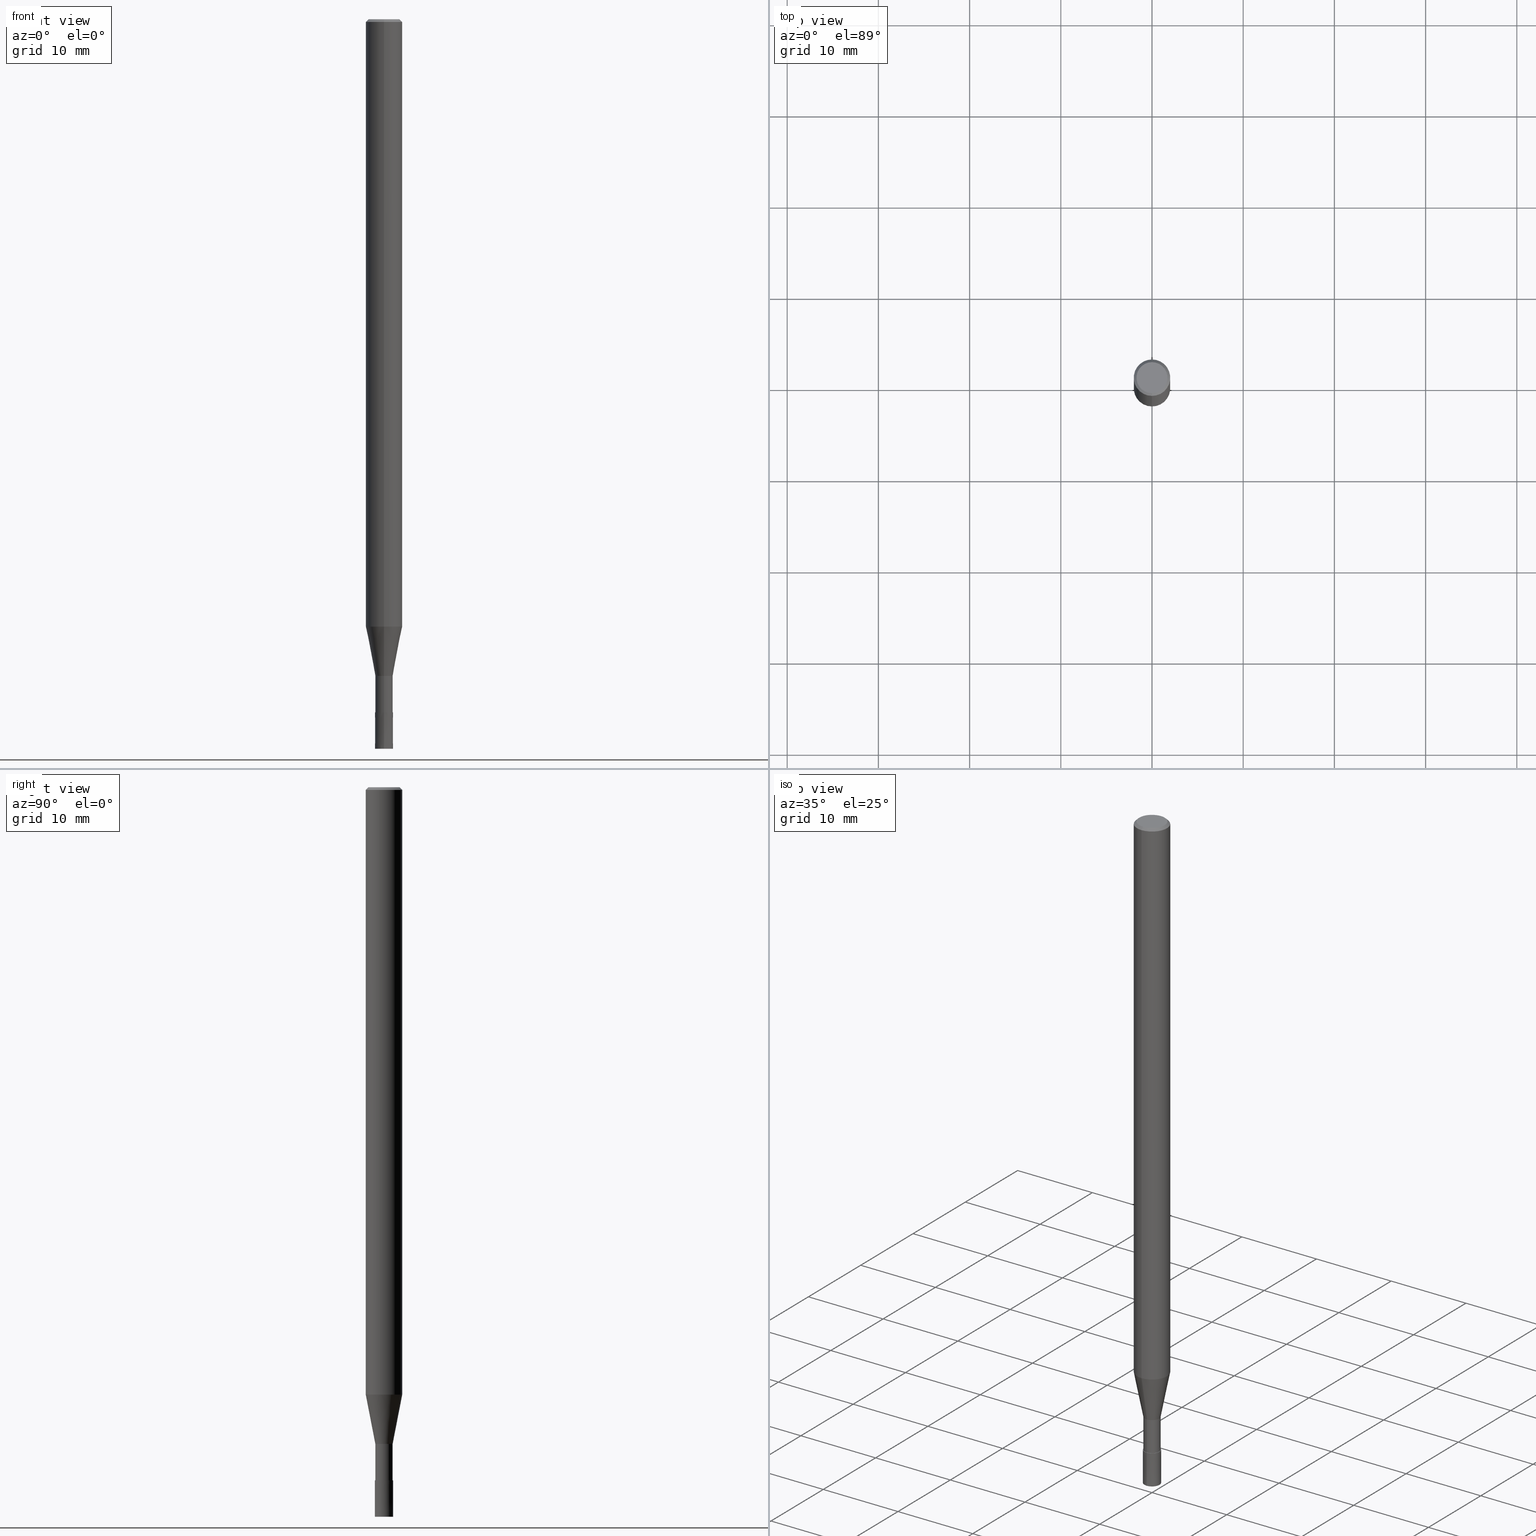
[diagram: canonical four-view strip — front | top / right | iso, engineering-drawing reading convention]
A machine part, canonical four-view strip (front | top / right | iso — engineering-drawing reading convention). The complete STEP part file that produces these views, byte-faithful:
ISO-10303-21;
HEADER;
FILE_DESCRIPTION(('no description'),'unknown implementation level');
FILE_NAME('CPRL2020-8-Huellk.stp','  ',('CIMSOURCE GmbH'),('CADClick - KiM GmbH - www.kimweb.de'),'unknown preprocess','ACIS','unknown authorization');
FILE_SCHEMA(('automotive_design'));
ENDSEC;
DATA;
#1=MECHANICAL_DESIGN_GEOMETRIC_PRESENTATION_REPRESENTATION(' ',(#14,#15,#16,#17,#18,#19,#20,#21,#22,#23,#24,#25,#26,#27,#28,#29,#30,#31,#32,#33,#34,#35,#36,#37,#38,#39,#40,#41,#42,#43,#44,#45,#46,#47,#48,#49,#50,#51,#52,#53,#54,#55,#56,#57,#58,#59,#60,#61,#62,#63,#64,#65,#66,#67,#68,#69,#70,#71,#72),#10);
#2=PRODUCT_DEFINITION_CONTEXT('',#73,'design');
#3=APPLICATION_PROTOCOL_DEFINITION('INTERNATIONAL STANDARD','automotive_design',1994,#73);
#4=PRODUCT_CATEGORY_RELATIONSHIP('NONE','NONE',#74,#75);
#5=SHAPE_DEFINITION_REPRESENTATION(#76,#77);
#6=PRODUCT_DEFINITION_CONTEXT('',#78,'design');
#7=APPLICATION_PROTOCOL_DEFINITION('INTERNATIONAL STANDARD','automotive_design',1994,#78);
#8=PRODUCT_CATEGORY_RELATIONSHIP('NONE','NONE',#79,#80);
#9=SHAPE_DEFINITION_REPRESENTATION(#81,#82);
#10= (GEOMETRIC_REPRESENTATION_CONTEXT(3)GLOBAL_UNCERTAINTY_ASSIGNED_CONTEXT((#85))GLOBAL_UNIT_ASSIGNED_CONTEXT((#87,#88,#89))REPRESENTATION_CONTEXT('NONE','WORKSPACE'));
#14=STYLED_ITEM('',(#91),#92);
#15=STYLED_ITEM('',(#93),#94);
#16=STYLED_ITEM('',(#95),#96);
#17=STYLED_ITEM('',(#97),#98);
#18=STYLED_ITEM('',(#99),#100);
#19=STYLED_ITEM('',(#101),#102);
#20=STYLED_ITEM('',(#103),#104);
#21=STYLED_ITEM('',(#105),#106);
#22=STYLED_ITEM('',(#107),#108);
#23=STYLED_ITEM('',(#109),#110);
#24=STYLED_ITEM('',(#111),#112);
#25=STYLED_ITEM('',(#113),#114);
#26=STYLED_ITEM('',(#115),#116);
#27=STYLED_ITEM('',(#117),#118);
#28=STYLED_ITEM('',(#119),#120);
#29=STYLED_ITEM('',(#121),#122);
#30=STYLED_ITEM('',(#123),#124);
#31=STYLED_ITEM('',(#125),#126);
#32=STYLED_ITEM('',(#127),#128);
#33=STYLED_ITEM('',(#129),#130);
#34=STYLED_ITEM('',(#131),#132);
#35=STYLED_ITEM('',(#133),#134);
#36=STYLED_ITEM('',(#135),#136);
#37=STYLED_ITEM('',(#137),#138);
#38=STYLED_ITEM('',(#139),#140);
#39=STYLED_ITEM('',(#141),#142);
#40=STYLED_ITEM('',(#143),#144);
#41=STYLED_ITEM('',(#145),#146);
#42=STYLED_ITEM('',(#147),#148);
#43=STYLED_ITEM('',(#149),#150);
#44=STYLED_ITEM('',(#151),#152);
#45=STYLED_ITEM('',(#153),#154);
#46=STYLED_ITEM('',(#155),#156);
#47=STYLED_ITEM('',(#157),#158);
#48=STYLED_ITEM('',(#159),#160);
#49=STYLED_ITEM('',(#161),#162);
#50=STYLED_ITEM('',(#163),#164);
#51=STYLED_ITEM('',(#165),#166);
#52=STYLED_ITEM('',(#167),#168);
#53=STYLED_ITEM('',(#169),#170);
#54=STYLED_ITEM('',(#171),#172);
#55=STYLED_ITEM('',(#173),#174);
#56=STYLED_ITEM('',(#175),#176);
#57=STYLED_ITEM('',(#177),#178);
#58=STYLED_ITEM('',(#179),#180);
#59=STYLED_ITEM('',(#181),#182);
#60=STYLED_ITEM('',(#183),#184);
#61=STYLED_ITEM('',(#185),#186);
#62=STYLED_ITEM('',(#187),#188);
#63=STYLED_ITEM('',(#189),#190);
#64=STYLED_ITEM('',(#191),#192);
#65=STYLED_ITEM('',(#193),#194);
#66=STYLED_ITEM('',(#195),#196);
#67=STYLED_ITEM('',(#197),#198);
#68=STYLED_ITEM('',(#199),#200);
#69=STYLED_ITEM('',(#201),#202);
#70=STYLED_ITEM('',(#203),#204);
#71=STYLED_ITEM('',(#205),#206);
#72=STYLED_ITEM('',(#207),#208);
#73=APPLICATION_CONTEXT(' ');
#74=PRODUCT_CATEGORY('part','NONE');
#75=PRODUCT_RELATED_PRODUCT_CATEGORY('detail',' ',(#209));
#76=PRODUCT_DEFINITION_SHAPE('NONE','NONE',#210);
#77=ADVANCED_BREP_SHAPE_REPRESENTATION('1',(#162,#211),#10);
#78=APPLICATION_CONTEXT(' ');
#79=PRODUCT_CATEGORY('part','NONE');
#80=PRODUCT_RELATED_PRODUCT_CATEGORY('detail',' ',(#212));
#81=PRODUCT_DEFINITION_SHAPE('NONE','NONE',#213);
#82=ADVANCED_BREP_SHAPE_REPRESENTATION('2',(#106,#214),#10);
#85=UNCERTAINTY_MEASURE_WITH_UNIT(LENGTH_MEASURE(1.0E-006),#87,'','');
#87= (CONVERSION_BASED_UNIT('MILLIMETRE',#217)LENGTH_UNIT()NAMED_UNIT(#220));
#88= (NAMED_UNIT(#222)PLANE_ANGLE_UNIT()SI_UNIT($,.RADIAN.));
#89= (NAMED_UNIT(#222)SOLID_ANGLE_UNIT()SI_UNIT($,.STERADIAN.));
#91=PRESENTATION_STYLE_ASSIGNMENT((#228));
#92=EDGE_CURVE('',#168,#136,#229,.T.);
#93=PRESENTATION_STYLE_ASSIGNMENT((#230));
#94=EDGE_CURVE('',#176,#174,#231,.T.);
#95=PRESENTATION_STYLE_ASSIGNMENT((#232));
#96=ADVANCED_FACE('',(#233),#234,.T.);
#97=PRESENTATION_STYLE_ASSIGNMENT((#235));
#98=EDGE_CURVE('',#184,#186,#236,.T.);
#99=PRESENTATION_STYLE_ASSIGNMENT((#237));
#100=VERTEX_POINT('',#238);
#101=PRESENTATION_STYLE_ASSIGNMENT((#239));
#102=EDGE_CURVE('',#114,#148,#240,.T.);
#103=PRESENTATION_STYLE_ASSIGNMENT((#241));
#104=ADVANCED_FACE('',(#242),#243,.T.);
#105=PRESENTATION_STYLE_ASSIGNMENT((#244));
#106=MANIFOLD_SOLID_BREP('2',#245);
#107=PRESENTATION_STYLE_ASSIGNMENT((#246));
#108=ADVANCED_FACE('',(#247),#248,.T.);
#109=PRESENTATION_STYLE_ASSIGNMENT((#249));
#110=EDGE_CURVE('',#148,#114,#250,.T.);
#111=PRESENTATION_STYLE_ASSIGNMENT((#251));
#112=VERTEX_POINT('',#252);
#113=PRESENTATION_STYLE_ASSIGNMENT((#253));
#114=VERTEX_POINT('',#254);
#115=PRESENTATION_STYLE_ASSIGNMENT((#255));
#116=ADVANCED_FACE('',(#256),#257,.T.);
#117=PRESENTATION_STYLE_ASSIGNMENT((#258));
#118=VERTEX_POINT('',#259);
#119=PRESENTATION_STYLE_ASSIGNMENT((#260));
#120=ADVANCED_FACE('',(#261),#262,.T.);
#121=PRESENTATION_STYLE_ASSIGNMENT((#263));
#122=VERTEX_POINT('',#264);
#123=PRESENTATION_STYLE_ASSIGNMENT((#265));
#124=ADVANCED_FACE('',(#266),#267,.T.);
#125=PRESENTATION_STYLE_ASSIGNMENT((#268));
#126=ADVANCED_FACE('',(#269),#270,.T.);
#127=PRESENTATION_STYLE_ASSIGNMENT((#271));
#128=EDGE_CURVE('',#136,#168,#272,.T.);
#129=PRESENTATION_STYLE_ASSIGNMENT((#273));
#130=VERTEX_POINT('',#274);
#131=PRESENTATION_STYLE_ASSIGNMENT((#275));
#132=EDGE_CURVE('',#174,#186,#276,.T.);
#133=PRESENTATION_STYLE_ASSIGNMENT((#277));
#134=EDGE_CURVE('',#118,#112,#278,.T.);
#135=PRESENTATION_STYLE_ASSIGNMENT((#279));
#136=VERTEX_POINT('',#280);
#137=PRESENTATION_STYLE_ASSIGNMENT((#281));
#138=EDGE_CURVE('',#186,#184,#282,.T.);
#139=PRESENTATION_STYLE_ASSIGNMENT((#283));
#140=VERTEX_POINT('',#284);
#141=PRESENTATION_STYLE_ASSIGNMENT((#285));
#142=EDGE_CURVE('',#130,#160,#286,.T.);
#143=PRESENTATION_STYLE_ASSIGNMENT((#287));
#144=ADVANCED_FACE('',(#288),#289,.T.);
#145=PRESENTATION_STYLE_ASSIGNMENT((#290));
#146=ADVANCED_FACE('',(#291),#292,.T.);
#147=PRESENTATION_STYLE_ASSIGNMENT((#293));
#148=VERTEX_POINT('',#294);
#149=PRESENTATION_STYLE_ASSIGNMENT((#295));
#150=ADVANCED_FACE('',(#296),#297,.T.);
#151=PRESENTATION_STYLE_ASSIGNMENT((#298));
#152=EDGE_CURVE('',#112,#114,#299,.T.);
#153=PRESENTATION_STYLE_ASSIGNMENT((#300));
#154=EDGE_CURVE('',#176,#122,#301,.T.);
#155=PRESENTATION_STYLE_ASSIGNMENT((#302));
#156=ADVANCED_FACE('',(#303),#304,.T.);
#157=PRESENTATION_STYLE_ASSIGNMENT((#305));
#158=EDGE_CURVE('',#182,#160,#306,.T.);
#159=PRESENTATION_STYLE_ASSIGNMENT((#307));
#160=VERTEX_POINT('',#308);
#161=PRESENTATION_STYLE_ASSIGNMENT((#309));
#162=MANIFOLD_SOLID_BREP('1',#310);
#163=PRESENTATION_STYLE_ASSIGNMENT((#311));
#164=EDGE_CURVE('',#130,#100,#312,.T.);
#165=PRESENTATION_STYLE_ASSIGNMENT((#313));
#166=ADVANCED_FACE('',(#314),#315,.T.);
#167=PRESENTATION_STYLE_ASSIGNMENT((#316));
#168=VERTEX_POINT('',#317);
#169=PRESENTATION_STYLE_ASSIGNMENT((#318));
#170=ADVANCED_FACE('',(#319),#320,.T.);
#171=PRESENTATION_STYLE_ASSIGNMENT((#321));
#172=ADVANCED_FACE('',(#322,#323),#324,.T.);
#173=PRESENTATION_STYLE_ASSIGNMENT((#325));
#174=VERTEX_POINT('',#326);
#175=PRESENTATION_STYLE_ASSIGNMENT((#327));
#176=VERTEX_POINT('',#328);
#177=PRESENTATION_STYLE_ASSIGNMENT((#329));
#178=EDGE_CURVE('',#184,#140,#330,.T.);
#179=PRESENTATION_STYLE_ASSIGNMENT((#331));
#180=EDGE_CURVE('',#148,#118,#332,.T.);
#181=PRESENTATION_STYLE_ASSIGNMENT((#333));
#182=VERTEX_POINT('',#334);
#183=PRESENTATION_STYLE_ASSIGNMENT((#335));
#184=VERTEX_POINT('',#336);
#185=PRESENTATION_STYLE_ASSIGNMENT((#337));
#186=VERTEX_POINT('',#338);
#187=PRESENTATION_STYLE_ASSIGNMENT((#339));
#188=EDGE_CURVE('',#174,#140,#340,.T.);
#189=PRESENTATION_STYLE_ASSIGNMENT((#341));
#190=ADVANCED_FACE('',(#342),#343,.T.);
#191=PRESENTATION_STYLE_ASSIGNMENT((#344));
#192=EDGE_CURVE('',#100,#182,#345,.T.);
#193=PRESENTATION_STYLE_ASSIGNMENT((#346));
#194=EDGE_CURVE('',#112,#118,#347,.T.);
#195=PRESENTATION_STYLE_ASSIGNMENT((#348));
#196=EDGE_CURVE('',#140,#174,#349,.T.);
#197=PRESENTATION_STYLE_ASSIGNMENT((#350));
#198=EDGE_CURVE('',#122,#176,#351,.T.);
#199=PRESENTATION_STYLE_ASSIGNMENT((#352));
#200=EDGE_CURVE('',#136,#112,#353,.T.);
#201=PRESENTATION_STYLE_ASSIGNMENT((#354));
#202=EDGE_CURVE('',#160,#130,#355,.T.);
#203=PRESENTATION_STYLE_ASSIGNMENT((#356));
#204=EDGE_CURVE('',#140,#122,#357,.T.);
#205=PRESENTATION_STYLE_ASSIGNMENT((#358));
#206=EDGE_CURVE('',#118,#168,#359,.T.);
#207=PRESENTATION_STYLE_ASSIGNMENT((#360));
#208=EDGE_CURVE('',#182,#100,#361,.T.);
#209=PRODUCT('1','1','PART-1-DESC',(#362));
#210=PRODUCT_DEFINITION('NONE','NONE',#363,#2);
#211=AXIS2_PLACEMENT_3D('',#364,#365,#366);
#212=PRODUCT('2','2','PART-2-DESC',(#367));
#213=PRODUCT_DEFINITION('NONE','NONE',#368,#6);
#214=AXIS2_PLACEMENT_3D('',#369,#370,#371);
#217=LENGTH_MEASURE_WITH_UNIT(LENGTH_MEASURE(1.0),#372);
#220=DIMENSIONAL_EXPONENTS(1.0,0.0,0.0,0.0,0.0,0.0,0.0);
#222=DIMENSIONAL_EXPONENTS(0.0,0.0,0.0,0.0,0.0,0.0,0.0);
#228=CURVE_STYLE('',#373,POSITIVE_LENGTH_MEASURE(1.0E-006),#374);
#229=CIRCLE('',#375,2.0);
#230=CURVE_STYLE('',#376,POSITIVE_LENGTH_MEASURE(1.0E-006),#377);
#231=LINE('',#378,#379);
#232=SURFACE_STYLE_USAGE(.BOTH.,#380);
#233=FACE_OUTER_BOUND('',#381,.T.);
#234=CONICAL_SURFACE('',#382,0.99995,2.49999999947889E-005);
#235=CURVE_STYLE('',#383,POSITIVE_LENGTH_MEASURE(1.0E-006),#384);
#236=CIRCLE('',#385,1.99995);
#237=POINT_STYLE(' ',#386,POSITIVE_LENGTH_MEASURE(1.0E-006),#387);
#238=CARTESIAN_POINT('',(0.0,1.0,-80.0));
#239=CURVE_STYLE('',#388,POSITIVE_LENGTH_MEASURE(1.0E-006),#389);
#240=CIRCLE('',#390,1.7);
#241=SURFACE_STYLE_USAGE(.BOTH.,#391);
#242=FACE_OUTER_BOUND('',#392,.T.);
#243=CYLINDRICAL_SURFACE('',#393,0.94995);
#244=SURFACE_STYLE_USAGE(.BOTH.,#394);
#245=CLOSED_SHELL('',(#96,#126,#116,#156));
#246=SURFACE_STYLE_USAGE(.BOTH.,#395);
#247=FACE_OUTER_BOUND('',#396,.T.);
#248=PLANE('',#397);
#249=CURVE_STYLE('',#398,POSITIVE_LENGTH_MEASURE(1.0E-006),#399);
#250=CIRCLE('',#400,1.7);
#251=POINT_STYLE(' ',#401,POSITIVE_LENGTH_MEASURE(1.0E-006),#402);
#252=CARTESIAN_POINT('',(2.44921270764475E-016,-2.0,-0.299999999999997));
#253=POINT_STYLE(' ',#403,POSITIVE_LENGTH_MEASURE(1.0E-006),#404);
#254=CARTESIAN_POINT('',(2.08183080149804E-016,-1.7,0.0));
#255=SURFACE_STYLE_USAGE(.BOTH.,#405);
#256=FACE_OUTER_BOUND('',#406,.T.);
#257=CONICAL_SURFACE('',#407,0.99995,2.49999999947889E-005);
#258=POINT_STYLE(' ',#408,POSITIVE_LENGTH_MEASURE(1.0E-006),#409);
#259=CARTESIAN_POINT('',(0.0,2.0,-0.299999999999997));
#260=SURFACE_STYLE_USAGE(.BOTH.,#410);
#261=FACE_OUTER_BOUND('',#411,.T.);
#262=CONICAL_SURFACE('',#412,1.85,0.785398163397453);
#263=POINT_STYLE(' ',#413,POSITIVE_LENGTH_MEASURE(1.0E-006),#414);
#264=CARTESIAN_POINT('',(0.0,0.94995,-76.0));
#265=SURFACE_STYLE_USAGE(.BOTH.,#415);
#266=FACE_OUTER_BOUND('',#416,.T.);
#267=CYLINDRICAL_SURFACE('',#417,0.94995);
#268=SURFACE_STYLE_USAGE(.BOTH.,#418);
#269=FACE_OUTER_BOUND('',#419,.T.);
#270=PLANE('',#420);
#271=CURVE_STYLE('',#421,POSITIVE_LENGTH_MEASURE(1.0E-006),#422);
#272=CIRCLE('',#423,2.0);
#273=POINT_STYLE(' ',#424,POSITIVE_LENGTH_MEASURE(1.0E-006),#425);
#274=CARTESIAN_POINT('',(0.0,0.9999,-76.0));
#275=CURVE_STYLE('',#426,POSITIVE_LENGTH_MEASURE(1.0E-006),#427);
#276=LINE('',#428,#429);
#277=CURVE_STYLE('',#430,POSITIVE_LENGTH_MEASURE(1.0E-006),#431);
#278=CIRCLE('',#432,2.0);
#279=POINT_STYLE(' ',#433,POSITIVE_LENGTH_MEASURE(1.0E-006),#434);
#280=CARTESIAN_POINT('',(2.44921270764475E-016,-2.0,-66.598));
#281=CURVE_STYLE('',#435,POSITIVE_LENGTH_MEASURE(1.0E-006),#436);
#282=CIRCLE('',#437,1.99995);
#283=POINT_STYLE(' ',#438,POSITIVE_LENGTH_MEASURE(1.0E-006),#439);
#284=CARTESIAN_POINT('',(0.0,0.94995,-72.0));
#285=CURVE_STYLE('',#440,POSITIVE_LENGTH_MEASURE(1.0E-006),#441);
#286=CIRCLE('',#442,0.9999);
#287=SURFACE_STYLE_USAGE(.BOTH.,#443);
#288=FACE_OUTER_BOUND('',#444,.T.);
#289=CONICAL_SURFACE('',#445,1.85,0.785398163397453);
#290=SURFACE_STYLE_USAGE(.BOTH.,#446);
#291=FACE_OUTER_BOUND('',#447,.T.);
#292=CYLINDRICAL_SURFACE('',#448,2.0);
#293=POINT_STYLE(' ',#449,POSITIVE_LENGTH_MEASURE(1.0E-006),#450);
#294=CARTESIAN_POINT('',(0.0,1.7,0.0));
#295=SURFACE_STYLE_USAGE(.BOTH.,#451);
#296=FACE_OUTER_BOUND('',#452,.T.);
#297=CONICAL_SURFACE('',#453,1.47495,0.191978649183841);
#298=CURVE_STYLE('',#454,POSITIVE_LENGTH_MEASURE(1.0E-006),#455);
#299=LINE('',#456,#457);
#300=CURVE_STYLE('',#458,POSITIVE_LENGTH_MEASURE(1.0E-006),#459);
#301=CIRCLE('',#460,0.94995);
#302=SURFACE_STYLE_USAGE(.BOTH.,#461);
#303=FACE_OUTER_BOUND('',#462,.T.);
#304=PLANE('',#463);
#305=CURVE_STYLE('',#464,POSITIVE_LENGTH_MEASURE(1.0E-006),#465);
#306=LINE('',#466,#467);
#307=POINT_STYLE(' ',#468,POSITIVE_LENGTH_MEASURE(1.0E-006),#469);
#308=CARTESIAN_POINT('',(1.224483893187E-016,-0.9999,-76.0));
#309=SURFACE_STYLE_USAGE(.BOTH.,#470);
#310=CLOSED_SHELL('',(#104,#190,#146,#144,#172,#108,#120,#166,#150,#124,#170));
#311=CURVE_STYLE('',#471,POSITIVE_LENGTH_MEASURE(1.0E-006),#472);
#312=LINE('',#473,#474);
#313=SURFACE_STYLE_USAGE(.BOTH.,#475);
#314=FACE_OUTER_BOUND('',#476,.T.);
#315=CYLINDRICAL_SURFACE('',#477,2.0);
#316=POINT_STYLE(' ',#478,POSITIVE_LENGTH_MEASURE(1.0E-006),#479);
#317=CARTESIAN_POINT('',(0.0,2.0,-66.598));
#318=SURFACE_STYLE_USAGE(.BOTH.,#480);
#319=FACE_OUTER_BOUND('',#481,.T.);
#320=PLANE('',#482);
#321=SURFACE_STYLE_USAGE(.BOTH.,#483);
#322=FACE_OUTER_BOUND('',#484,.T.);
#323=FACE_BOUND('',#485,.T.);
#324=PLANE('',#486);
#325=POINT_STYLE(' ',#487,POSITIVE_LENGTH_MEASURE(1.0E-006),#488);
#326=CARTESIAN_POINT('',(1.16331480581357E-016,-0.94995,-72.0));
#327=POINT_STYLE(' ',#489,POSITIVE_LENGTH_MEASURE(1.0E-006),#490);
#328=CARTESIAN_POINT('',(1.16331480581357E-016,-0.94995,-76.0));
#329=CURVE_STYLE('',#491,POSITIVE_LENGTH_MEASURE(1.0E-006),#492);
#330=LINE('',#493,#494);
#331=CURVE_STYLE('',#495,POSITIVE_LENGTH_MEASURE(1.0E-006),#496);
#332=LINE('',#497,#498);
#333=POINT_STYLE(' ',#499,POSITIVE_LENGTH_MEASURE(1.0E-006),#500);
#334=CARTESIAN_POINT('',(1.22460635382238E-016,-1.0,-80.0));
#335=POINT_STYLE(' ',#501,POSITIVE_LENGTH_MEASURE(1.0E-006),#502);
#336=CARTESIAN_POINT('',(0.0,1.99995,-66.598));
#337=POINT_STYLE(' ',#503,POSITIVE_LENGTH_MEASURE(1.0E-006),#504);
#338=CARTESIAN_POINT('',(2.44915147732706E-016,-1.99995,-66.598));
#339=CURVE_STYLE('',#505,POSITIVE_LENGTH_MEASURE(1.0E-006),#506);
#340=CIRCLE('',#507,0.94995);
#341=SURFACE_STYLE_USAGE(.BOTH.,#508);
#342=FACE_OUTER_BOUND('',#509,.T.);
#343=CONICAL_SURFACE('',#510,1.47495,0.191978649183841);
#344=CURVE_STYLE('',#511,POSITIVE_LENGTH_MEASURE(1.0E-006),#512);
#345=CIRCLE('',#513,1.0);
#346=CURVE_STYLE('',#514,POSITIVE_LENGTH_MEASURE(1.0E-006),#515);
#347=CIRCLE('',#516,2.0);
#348=CURVE_STYLE('',#517,POSITIVE_LENGTH_MEASURE(1.0E-006),#518);
#349=CIRCLE('',#519,0.94995);
#350=CURVE_STYLE('',#520,POSITIVE_LENGTH_MEASURE(1.0E-006),#521);
#351=CIRCLE('',#522,0.94995);
#352=CURVE_STYLE('',#523,POSITIVE_LENGTH_MEASURE(1.0E-006),#524);
#353=LINE('',#525,#526);
#354=CURVE_STYLE('',#527,POSITIVE_LENGTH_MEASURE(1.0E-006),#528);
#355=CIRCLE('',#529,0.9999);
#356=CURVE_STYLE('',#530,POSITIVE_LENGTH_MEASURE(1.0E-006),#531);
#357=LINE('',#532,#533);
#358=CURVE_STYLE('',#534,POSITIVE_LENGTH_MEASURE(1.0E-006),#535);
#359=LINE('',#536,#537);
#360=CURVE_STYLE('',#538,POSITIVE_LENGTH_MEASURE(1.0E-006),#539);
#361=CIRCLE('',#540,1.0);
#362=PRODUCT_CONTEXT('',#73,'mechanical');
#363=PRODUCT_DEFINITION_FORMATION_WITH_SPECIFIED_SOURCE(' ','NONE',#209,.NOT_KNOWN.);
#364=CARTESIAN_POINT('',(0.0,0.0,0.0));
#365=DIRECTION('',(0.0,0.0,1.0));
#366=DIRECTION('',(1.0,0.0,0.0));
#367=PRODUCT_CONTEXT('',#78,'mechanical');
#368=PRODUCT_DEFINITION_FORMATION_WITH_SPECIFIED_SOURCE(' ','NONE',#212,.NOT_KNOWN.);
#369=CARTESIAN_POINT('',(0.0,0.0,0.0));
#370=DIRECTION('',(0.0,0.0,1.0));
#371=DIRECTION('',(1.0,0.0,0.0));
#372= (NAMED_UNIT(#220)LENGTH_UNIT()SI_UNIT(.MILLI.,.METRE.));
#373=DRAUGHTING_PRE_DEFINED_CURVE_FONT('continuous');
#374=COLOUR_RGB('',0.498039215803146,0.498039215803146,0.498039215803146);
#375=AXIS2_PLACEMENT_3D('',#542,#543,#544);
#376=DRAUGHTING_PRE_DEFINED_CURVE_FONT('continuous');
#377=COLOUR_RGB('',0.498039215803146,0.498039215803146,0.498039215803146);
#378=CARTESIAN_POINT('',(1.16331480581357E-016,-0.94995,-74.0));
#379=VECTOR('',#545,1.0);
#380=SURFACE_SIDE_STYLE('',(#546));
#381=EDGE_LOOP('',(#547,#548,#549,#550));
#382=AXIS2_PLACEMENT_3D('',#551,#552,#553);
#383=DRAUGHTING_PRE_DEFINED_CURVE_FONT('continuous');
#384=COLOUR_RGB('',0.498039215803146,0.498039215803146,0.498039215803146);
#385=AXIS2_PLACEMENT_3D('',#554,#555,#556);
#386=PRE_DEFINED_MARKER('');
#387=COLOUR_RGB('',0.800000011920929,0.800000011920929,0.800000011920929);
#388=DRAUGHTING_PRE_DEFINED_CURVE_FONT('continuous');
#389=COLOUR_RGB('',0.498039215803146,0.498039215803146,0.498039215803146);
#390=AXIS2_PLACEMENT_3D('',#557,#558,#559);
#391=SURFACE_SIDE_STYLE('',(#560));
#392=EDGE_LOOP('',(#561,#562,#563,#564));
#393=AXIS2_PLACEMENT_3D('',#565,#566,#567);
#394=SURFACE_SIDE_STYLE('',(#568));
#395=SURFACE_SIDE_STYLE('',(#569));
#396=EDGE_LOOP('',(#570,#571));
#397=AXIS2_PLACEMENT_3D('',#572,#573,#574);
#398=DRAUGHTING_PRE_DEFINED_CURVE_FONT('continuous');
#399=COLOUR_RGB('',0.498039215803146,0.498039215803146,0.498039215803146);
#400=AXIS2_PLACEMENT_3D('',#575,#576,#577);
#401=PRE_DEFINED_MARKER('');
#402=COLOUR_RGB('',0.498039215803146,0.498039215803146,0.498039215803146);
#403=PRE_DEFINED_MARKER('');
#404=COLOUR_RGB('',0.498039215803146,0.498039215803146,0.498039215803146);
#405=SURFACE_SIDE_STYLE('',(#578));
#406=EDGE_LOOP('',(#579,#580,#581,#582));
#407=AXIS2_PLACEMENT_3D('',#583,#584,#585);
#408=PRE_DEFINED_MARKER('');
#409=COLOUR_RGB('',0.498039215803146,0.498039215803146,0.498039215803146);
#410=SURFACE_SIDE_STYLE('',(#586));
#411=EDGE_LOOP('',(#587,#588,#589,#590));
#412=AXIS2_PLACEMENT_3D('',#591,#592,#593);
#413=PRE_DEFINED_MARKER('');
#414=COLOUR_RGB('',0.498039215803146,0.498039215803146,0.498039215803146);
#415=SURFACE_SIDE_STYLE('',(#594));
#416=EDGE_LOOP('',(#595,#596,#597,#598));
#417=AXIS2_PLACEMENT_3D('',#599,#600,#601);
#418=SURFACE_SIDE_STYLE('',(#602));
#419=EDGE_LOOP('',(#603,#604));
#420=AXIS2_PLACEMENT_3D('',#605,#606,#607);
#421=DRAUGHTING_PRE_DEFINED_CURVE_FONT('continuous');
#422=COLOUR_RGB('',0.498039215803146,0.498039215803146,0.498039215803146);
#423=AXIS2_PLACEMENT_3D('',#608,#609,#610);
#424=PRE_DEFINED_MARKER('');
#425=COLOUR_RGB('',0.800000011920929,0.800000011920929,0.800000011920929);
#426=DRAUGHTING_PRE_DEFINED_CURVE_FONT('continuous');
#427=COLOUR_RGB('',0.498039215803146,0.498039215803146,0.498039215803146);
#428=CARTESIAN_POINT('',(1.80623314157031E-016,-1.47495,-69.299));
#429=VECTOR('',#611,1.0);
#430=DRAUGHTING_PRE_DEFINED_CURVE_FONT('continuous');
#431=COLOUR_RGB('',0.498039215803146,0.498039215803146,0.498039215803146);
#432=AXIS2_PLACEMENT_3D('',#612,#613,#614);
#433=PRE_DEFINED_MARKER('');
#434=COLOUR_RGB('',0.498039215803146,0.498039215803146,0.498039215803146);
#435=DRAUGHTING_PRE_DEFINED_CURVE_FONT('continuous');
#436=COLOUR_RGB('',0.498039215803146,0.498039215803146,0.498039215803146);
#437=AXIS2_PLACEMENT_3D('',#615,#616,#617);
#438=PRE_DEFINED_MARKER('');
#439=COLOUR_RGB('',0.498039215803146,0.498039215803146,0.498039215803146);
#440=DRAUGHTING_PRE_DEFINED_CURVE_FONT('continuous');
#441=COLOUR_RGB('',0.800000011920929,0.800000011920929,0.800000011920929);
#442=AXIS2_PLACEMENT_3D('',#618,#619,#620);
#443=SURFACE_SIDE_STYLE('',(#621));
#444=EDGE_LOOP('',(#622,#623,#624,#625));
#445=AXIS2_PLACEMENT_3D('',#626,#627,#628);
#446=SURFACE_SIDE_STYLE('',(#629));
#447=EDGE_LOOP('',(#630,#631,#632,#633));
#448=AXIS2_PLACEMENT_3D('',#634,#635,#636);
#449=PRE_DEFINED_MARKER('');
#450=COLOUR_RGB('',0.498039215803146,0.498039215803146,0.498039215803146);
#451=SURFACE_SIDE_STYLE('',(#637));
#452=EDGE_LOOP('',(#638,#639,#640,#641));
#453=AXIS2_PLACEMENT_3D('',#642,#643,#644);
#454=DRAUGHTING_PRE_DEFINED_CURVE_FONT('continuous');
#455=COLOUR_RGB('',0.498039215803146,0.498039215803146,0.498039215803146);
#456=CARTESIAN_POINT('',(2.2655217545714E-016,-1.85,-0.149999999999991));
#457=VECTOR('',#645,1.0);
#458=DRAUGHTING_PRE_DEFINED_CURVE_FONT('continuous');
#459=COLOUR_RGB('',0.498039215803146,0.498039215803146,0.498039215803146);
#460=AXIS2_PLACEMENT_3D('',#646,#647,#648);
#461=SURFACE_SIDE_STYLE('',(#649));
#462=EDGE_LOOP('',(#650,#651));
#463=AXIS2_PLACEMENT_3D('',#652,#653,#654);
#464=DRAUGHTING_PRE_DEFINED_CURVE_FONT('continuous');
#465=COLOUR_RGB('',0.800000011920929,0.800000011920929,0.800000011920929);
#466=CARTESIAN_POINT('',(1.22454512350469E-016,-0.99995,-78.0));
#467=VECTOR('',#655,1.0);
#468=PRE_DEFINED_MARKER('');
#469=COLOUR_RGB('',0.800000011920929,0.800000011920929,0.800000011920929);
#470=SURFACE_SIDE_STYLE('',(#656));
#471=DRAUGHTING_PRE_DEFINED_CURVE_FONT('continuous');
#472=COLOUR_RGB('',0.800000011920929,0.800000011920929,0.800000011920929);
#473=CARTESIAN_POINT('',(-1.22454512350469E-016,0.99995,-78.0));
#474=VECTOR('',#657,1.0);
#475=SURFACE_SIDE_STYLE('',(#658));
#476=EDGE_LOOP('',(#659,#660,#661,#662));
#477=AXIS2_PLACEMENT_3D('',#663,#664,#665);
#478=PRE_DEFINED_MARKER('');
#479=COLOUR_RGB('',0.498039215803146,0.498039215803146,0.498039215803146);
#480=SURFACE_SIDE_STYLE('',(#666));
#481=EDGE_LOOP('',(#667,#668));
#482=AXIS2_PLACEMENT_3D('',#669,#670,#671);
#483=SURFACE_SIDE_STYLE('',(#672));
#484=EDGE_LOOP('',(#673,#674));
#485=EDGE_LOOP('',(#675,#676));
#486=AXIS2_PLACEMENT_3D('',#677,#678,#679);
#487=PRE_DEFINED_MARKER('');
#488=COLOUR_RGB('',0.498039215803146,0.498039215803146,0.498039215803146);
#489=PRE_DEFINED_MARKER('');
#490=COLOUR_RGB('',0.498039215803146,0.498039215803146,0.498039215803146);
#491=DRAUGHTING_PRE_DEFINED_CURVE_FONT('continuous');
#492=COLOUR_RGB('',0.498039215803146,0.498039215803146,0.498039215803146);
#493=CARTESIAN_POINT('',(-1.80623314157032E-016,1.47495,-69.299));
#494=VECTOR('',#680,1.0);
#495=DRAUGHTING_PRE_DEFINED_CURVE_FONT('continuous');
#496=COLOUR_RGB('',0.498039215803146,0.498039215803146,0.498039215803146);
#497=CARTESIAN_POINT('',(-2.2655217545714E-016,1.85,-0.149999999999991));
#498=VECTOR('',#681,1.0);
#499=PRE_DEFINED_MARKER('');
#500=COLOUR_RGB('',0.800000011920929,0.800000011920929,0.800000011920929);
#501=PRE_DEFINED_MARKER('');
#502=COLOUR_RGB('',0.498039215803146,0.498039215803146,0.498039215803146);
#503=PRE_DEFINED_MARKER('');
#504=COLOUR_RGB('',0.498039215803146,0.498039215803146,0.498039215803146);
#505=DRAUGHTING_PRE_DEFINED_CURVE_FONT('continuous');
#506=COLOUR_RGB('',0.498039215803146,0.498039215803146,0.498039215803146);
#507=AXIS2_PLACEMENT_3D('',#682,#683,#684);
#508=SURFACE_SIDE_STYLE('',(#685));
#509=EDGE_LOOP('',(#686,#687,#688,#689));
#510=AXIS2_PLACEMENT_3D('',#690,#691,#692);
#511=DRAUGHTING_PRE_DEFINED_CURVE_FONT('continuous');
#512=COLOUR_RGB('',0.800000011920929,0.800000011920929,0.800000011920929);
#513=AXIS2_PLACEMENT_3D('',#693,#694,#695);
#514=DRAUGHTING_PRE_DEFINED_CURVE_FONT('continuous');
#515=COLOUR_RGB('',0.498039215803146,0.498039215803146,0.498039215803146);
#516=AXIS2_PLACEMENT_3D('',#696,#697,#698);
#517=DRAUGHTING_PRE_DEFINED_CURVE_FONT('continuous');
#518=COLOUR_RGB('',0.498039215803146,0.498039215803146,0.498039215803146);
#519=AXIS2_PLACEMENT_3D('',#699,#700,#701);
#520=DRAUGHTING_PRE_DEFINED_CURVE_FONT('continuous');
#521=COLOUR_RGB('',0.498039215803146,0.498039215803146,0.498039215803146);
#522=AXIS2_PLACEMENT_3D('',#702,#703,#704);
#523=DRAUGHTING_PRE_DEFINED_CURVE_FONT('continuous');
#524=COLOUR_RGB('',0.498039215803146,0.498039215803146,0.498039215803146);
#525=CARTESIAN_POINT('',(2.44921270764475E-016,-2.0,-33.449));
#526=VECTOR('',#705,1.0);
#527=DRAUGHTING_PRE_DEFINED_CURVE_FONT('continuous');
#528=COLOUR_RGB('',0.800000011920929,0.800000011920929,0.800000011920929);
#529=AXIS2_PLACEMENT_3D('',#706,#707,#708);
#530=DRAUGHTING_PRE_DEFINED_CURVE_FONT('continuous');
#531=COLOUR_RGB('',0.498039215803146,0.498039215803146,0.498039215803146);
#532=CARTESIAN_POINT('',(-1.16331480581357E-016,0.94995,-74.0));
#533=VECTOR('',#709,1.0);
#534=DRAUGHTING_PRE_DEFINED_CURVE_FONT('continuous');
#535=COLOUR_RGB('',0.498039215803146,0.498039215803146,0.498039215803146);
#536=CARTESIAN_POINT('',(-2.44921270764475E-016,2.0,-33.449));
#537=VECTOR('',#710,1.0);
#538=DRAUGHTING_PRE_DEFINED_CURVE_FONT('continuous');
#539=COLOUR_RGB('',0.800000011920929,0.800000011920929,0.800000011920929);
#540=AXIS2_PLACEMENT_3D('',#711,#712,#713);
#542=CARTESIAN_POINT('',(0.0,0.0,-66.598));
#543=DIRECTION('',(0.0,0.0,-1.0));
#544=DIRECTION('',(0.0,1.0,0.0));
#545=DIRECTION('',(-0.0,-0.0,1.0));
#546=SURFACE_STYLE_FILL_AREA(#714);
#547=ORIENTED_EDGE('',*,*,#164,.F.);
#548=ORIENTED_EDGE('',*,*,#142,.T.);
#549=ORIENTED_EDGE('',*,*,#158,.F.);
#550=ORIENTED_EDGE('',*,*,#192,.F.);
#551=CARTESIAN_POINT('',(0.0,0.0,-78.0));
#552=DIRECTION('',(0.0,-0.0,-1.0));
#553=DIRECTION('',(0.0,1.0,0.0));
#554=CARTESIAN_POINT('',(0.0,0.0,-66.598));
#555=DIRECTION('',(0.0,0.0,-1.0));
#556=DIRECTION('',(0.0,1.0,0.0));
#557=CARTESIAN_POINT('',(0.0,0.0,0.0));
#558=DIRECTION('',(0.0,0.0,-1.0));
#559=DIRECTION('',(0.0,1.0,0.0));
#560=SURFACE_STYLE_FILL_AREA(#715);
#561=ORIENTED_EDGE('',*,*,#204,.F.);
#562=ORIENTED_EDGE('',*,*,#196,.T.);
#563=ORIENTED_EDGE('',*,*,#94,.F.);
#564=ORIENTED_EDGE('',*,*,#198,.F.);
#565=CARTESIAN_POINT('',(0.0,0.0,-74.0));
#566=DIRECTION('',(-0.0,-0.0,1.0));
#567=DIRECTION('',(0.0,1.0,0.0));
#568=SURFACE_STYLE_FILL_AREA(#716);
#569=SURFACE_STYLE_FILL_AREA(#717);
#570=ORIENTED_EDGE('',*,*,#110,.F.);
#571=ORIENTED_EDGE('',*,*,#102,.F.);
#572=CARTESIAN_POINT('',(0.0,0.85,0.0));
#573=DIRECTION('',(-0.0,0.0,1.0));
#574=DIRECTION('',(0.0,-1.0,0.0));
#575=CARTESIAN_POINT('',(0.0,0.0,0.0));
#576=DIRECTION('',(0.0,0.0,-1.0));
#577=DIRECTION('',(0.0,1.0,0.0));
#578=SURFACE_STYLE_FILL_AREA(#718);
#579=ORIENTED_EDGE('',*,*,#164,.T.);
#580=ORIENTED_EDGE('',*,*,#208,.F.);
#581=ORIENTED_EDGE('',*,*,#158,.T.);
#582=ORIENTED_EDGE('',*,*,#202,.T.);
#583=CARTESIAN_POINT('',(0.0,0.0,-78.0));
#584=DIRECTION('',(0.0,-0.0,-1.0));
#585=DIRECTION('',(0.0,1.0,0.0));
#586=SURFACE_STYLE_FILL_AREA(#719);
#587=ORIENTED_EDGE('',*,*,#180,.T.);
#588=ORIENTED_EDGE('',*,*,#194,.F.);
#589=ORIENTED_EDGE('',*,*,#152,.T.);
#590=ORIENTED_EDGE('',*,*,#102,.T.);
#591=CARTESIAN_POINT('',(0.0,0.0,-0.149999999999991));
#592=DIRECTION('',(0.0,-0.0,-1.0));
#593=DIRECTION('',(0.0,1.0,0.0));
#594=SURFACE_STYLE_FILL_AREA(#720);
#595=ORIENTED_EDGE('',*,*,#204,.T.);
#596=ORIENTED_EDGE('',*,*,#154,.F.);
#597=ORIENTED_EDGE('',*,*,#94,.T.);
#598=ORIENTED_EDGE('',*,*,#188,.T.);
#599=CARTESIAN_POINT('',(0.0,0.0,-74.0));
#600=DIRECTION('',(-0.0,-0.0,1.0));
#601=DIRECTION('',(0.0,1.0,0.0));
#602=SURFACE_STYLE_FILL_AREA(#721);
#603=ORIENTED_EDGE('',*,*,#142,.F.);
#604=ORIENTED_EDGE('',*,*,#202,.F.);
#605=CARTESIAN_POINT('',(0.0,0.49995,-76.0));
#606=DIRECTION('',(-0.0,0.0,1.0));
#607=DIRECTION('',(0.0,-1.0,0.0));
#608=CARTESIAN_POINT('',(0.0,0.0,-66.598));
#609=DIRECTION('',(0.0,0.0,-1.0));
#610=DIRECTION('',(0.0,1.0,0.0));
#611=DIRECTION('',(2.33656809909206E-017,-0.19080156589086,0.981628627564211));
#612=CARTESIAN_POINT('',(0.0,0.0,-0.299999999999997));
#613=DIRECTION('',(0.0,0.0,-1.0));
#614=DIRECTION('',(0.0,1.0,0.0));
#615=CARTESIAN_POINT('',(0.0,0.0,-66.598));
#616=DIRECTION('',(0.0,0.0,-1.0));
#617=DIRECTION('',(0.0,1.0,0.0));
#618=CARTESIAN_POINT('',(0.0,0.0,-76.0));
#619=DIRECTION('',(0.0,0.0,-1.0));
#620=DIRECTION('',(0.0,1.0,0.0));
#621=SURFACE_STYLE_FILL_AREA(#722);
#622=ORIENTED_EDGE('',*,*,#180,.F.);
#623=ORIENTED_EDGE('',*,*,#110,.T.);
#624=ORIENTED_EDGE('',*,*,#152,.F.);
#625=ORIENTED_EDGE('',*,*,#134,.F.);
#626=CARTESIAN_POINT('',(0.0,0.0,-0.149999999999991));
#627=DIRECTION('',(0.0,-0.0,-1.0));
#628=DIRECTION('',(0.0,1.0,0.0));
#629=SURFACE_STYLE_FILL_AREA(#723);
#630=ORIENTED_EDGE('',*,*,#206,.F.);
#631=ORIENTED_EDGE('',*,*,#134,.T.);
#632=ORIENTED_EDGE('',*,*,#200,.F.);
#633=ORIENTED_EDGE('',*,*,#92,.F.);
#634=CARTESIAN_POINT('',(0.0,0.0,-33.449));
#635=DIRECTION('',(-0.0,-0.0,1.0));
#636=DIRECTION('',(0.0,1.0,0.0));
#637=SURFACE_STYLE_FILL_AREA(#724);
#638=ORIENTED_EDGE('',*,*,#178,.T.);
#639=ORIENTED_EDGE('',*,*,#188,.F.);
#640=ORIENTED_EDGE('',*,*,#132,.T.);
#641=ORIENTED_EDGE('',*,*,#138,.T.);
#642=CARTESIAN_POINT('',(0.0,0.0,-69.299));
#643=DIRECTION('',(-0.0,-0.0,1.0));
#644=DIRECTION('',(0.0,1.0,0.0));
#645=DIRECTION('',(-8.6592745707194E-017,0.707106781186551,0.707106781186544));
#646=CARTESIAN_POINT('',(0.0,0.0,-76.0));
#647=DIRECTION('',(0.0,0.0,-1.0));
#648=DIRECTION('',(0.0,1.0,0.0));
#649=SURFACE_STYLE_FILL_AREA(#725);
#650=ORIENTED_EDGE('',*,*,#192,.T.);
#651=ORIENTED_EDGE('',*,*,#208,.T.);
#652=CARTESIAN_POINT('',(0.0,0.4975,-80.0));
#653=DIRECTION('',(0.0,0.0,-1.0));
#654=DIRECTION('',(0.0,1.0,0.0));
#655=DIRECTION('',(-3.06151588359888E-021,2.49999999921847E-005,0.9999999996875));
#656=SURFACE_STYLE_FILL_AREA(#726);
#657=DIRECTION('',(-3.06151588359888E-021,2.49999999921847E-005,-0.9999999996875));
#658=SURFACE_STYLE_FILL_AREA(#727);
#659=ORIENTED_EDGE('',*,*,#206,.T.);
#660=ORIENTED_EDGE('',*,*,#128,.F.);
#661=ORIENTED_EDGE('',*,*,#200,.T.);
#662=ORIENTED_EDGE('',*,*,#194,.T.);
#663=CARTESIAN_POINT('',(0.0,0.0,-33.449));
#664=DIRECTION('',(-0.0,-0.0,1.0));
#665=DIRECTION('',(0.0,1.0,0.0));
#666=SURFACE_STYLE_FILL_AREA(#728);
#667=ORIENTED_EDGE('',*,*,#198,.T.);
#668=ORIENTED_EDGE('',*,*,#154,.T.);
#669=CARTESIAN_POINT('',(0.0,0.474975,-76.0));
#670=DIRECTION('',(0.0,0.0,-1.0));
#671=DIRECTION('',(0.0,1.0,0.0));
#672=SURFACE_STYLE_FILL_AREA(#729);
#673=ORIENTED_EDGE('',*,*,#92,.T.);
#674=ORIENTED_EDGE('',*,*,#128,.T.);
#675=ORIENTED_EDGE('',*,*,#98,.F.);
#676=ORIENTED_EDGE('',*,*,#138,.F.);
#677=CARTESIAN_POINT('',(0.0,1.0,-66.598));
#678=DIRECTION('',(0.0,0.0,-1.0));
#679=DIRECTION('',(0.0,1.0,0.0));
#680=DIRECTION('',(2.33656809909206E-017,-0.19080156589086,-0.981628627564211));
#681=DIRECTION('',(-8.6592745707194E-017,0.707106781186551,-0.707106781186544));
#682=CARTESIAN_POINT('',(0.0,0.0,-72.0));
#683=DIRECTION('',(0.0,0.0,-1.0));
#684=DIRECTION('',(0.0,1.0,0.0));
#685=SURFACE_STYLE_FILL_AREA(#730);
#686=ORIENTED_EDGE('',*,*,#178,.F.);
#687=ORIENTED_EDGE('',*,*,#98,.T.);
#688=ORIENTED_EDGE('',*,*,#132,.F.);
#689=ORIENTED_EDGE('',*,*,#196,.F.);
#690=CARTESIAN_POINT('',(0.0,0.0,-69.299));
#691=DIRECTION('',(-0.0,-0.0,1.0));
#692=DIRECTION('',(0.0,1.0,0.0));
#693=CARTESIAN_POINT('',(0.0,0.0,-80.0));
#694=DIRECTION('',(0.0,0.0,-1.0));
#695=DIRECTION('',(0.0,1.0,0.0));
#696=CARTESIAN_POINT('',(0.0,0.0,-0.299999999999997));
#697=DIRECTION('',(0.0,0.0,-1.0));
#698=DIRECTION('',(0.0,1.0,0.0));
#699=CARTESIAN_POINT('',(0.0,0.0,-72.0));
#700=DIRECTION('',(0.0,0.0,-1.0));
#701=DIRECTION('',(0.0,1.0,0.0));
#702=CARTESIAN_POINT('',(0.0,0.0,-76.0));
#703=DIRECTION('',(0.0,0.0,-1.0));
#704=DIRECTION('',(0.0,1.0,0.0));
#705=DIRECTION('',(-0.0,-0.0,1.0));
#706=CARTESIAN_POINT('',(0.0,0.0,-76.0));
#707=DIRECTION('',(0.0,0.0,-1.0));
#708=DIRECTION('',(0.0,1.0,0.0));
#709=DIRECTION('',(0.0,0.0,-1.0));
#710=DIRECTION('',(0.0,0.0,-1.0));
#711=CARTESIAN_POINT('',(0.0,0.0,-80.0));
#712=DIRECTION('',(0.0,0.0,-1.0));
#713=DIRECTION('',(0.0,1.0,0.0));
#714=FILL_AREA_STYLE('',(#731));
#715=FILL_AREA_STYLE('',(#732));
#716=FILL_AREA_STYLE('',(#733));
#717=FILL_AREA_STYLE('',(#734));
#718=FILL_AREA_STYLE('',(#735));
#719=FILL_AREA_STYLE('',(#736));
#720=FILL_AREA_STYLE('',(#737));
#721=FILL_AREA_STYLE('',(#738));
#722=FILL_AREA_STYLE('',(#739));
#723=FILL_AREA_STYLE('',(#740));
#724=FILL_AREA_STYLE('',(#741));
#725=FILL_AREA_STYLE('',(#742));
#726=FILL_AREA_STYLE('',(#743));
#727=FILL_AREA_STYLE('',(#744));
#728=FILL_AREA_STYLE('',(#745));
#729=FILL_AREA_STYLE('',(#746));
#730=FILL_AREA_STYLE('',(#747));
#731=FILL_AREA_STYLE_COLOUR('',#748);
#732=FILL_AREA_STYLE_COLOUR('',#749);
#733=FILL_AREA_STYLE_COLOUR('',#750);
#734=FILL_AREA_STYLE_COLOUR('',#751);
#735=FILL_AREA_STYLE_COLOUR('',#752);
#736=FILL_AREA_STYLE_COLOUR('',#753);
#737=FILL_AREA_STYLE_COLOUR('',#754);
#738=FILL_AREA_STYLE_COLOUR('',#755);
#739=FILL_AREA_STYLE_COLOUR('',#756);
#740=FILL_AREA_STYLE_COLOUR('',#757);
#741=FILL_AREA_STYLE_COLOUR('',#758);
#742=FILL_AREA_STYLE_COLOUR('',#759);
#743=FILL_AREA_STYLE_COLOUR('',#760);
#744=FILL_AREA_STYLE_COLOUR('',#761);
#745=FILL_AREA_STYLE_COLOUR('',#762);
#746=FILL_AREA_STYLE_COLOUR('',#763);
#747=FILL_AREA_STYLE_COLOUR('',#764);
#748=COLOUR_RGB('',0.800000011920929,0.800000011920929,0.800000011920929);
#749=COLOUR_RGB('',0.498039215803146,0.498039215803146,0.498039215803146);
#750=COLOUR_RGB('',0.800000011920929,0.800000011920929,0.800000011920929);
#751=COLOUR_RGB('',0.498039215803146,0.498039215803146,0.498039215803146);
#752=COLOUR_RGB('',0.800000011920929,0.800000011920929,0.800000011920929);
#753=COLOUR_RGB('',0.498039215803146,0.498039215803146,0.498039215803146);
#754=COLOUR_RGB('',0.498039215803146,0.498039215803146,0.498039215803146);
#755=COLOUR_RGB('',0.800000011920929,0.800000011920929,0.800000011920929);
#756=COLOUR_RGB('',0.498039215803146,0.498039215803146,0.498039215803146);
#757=COLOUR_RGB('',0.498039215803146,0.498039215803146,0.498039215803146);
#758=COLOUR_RGB('',0.498039215803146,0.498039215803146,0.498039215803146);
#759=COLOUR_RGB('',0.800000011920929,0.800000011920929,0.800000011920929);
#760=COLOUR_RGB('',0.498039215803146,0.498039215803146,0.498039215803146);
#761=COLOUR_RGB('',0.498039215803146,0.498039215803146,0.498039215803146);
#762=COLOUR_RGB('',0.498039215803146,0.498039215803146,0.498039215803146);
#763=COLOUR_RGB('',0.498039215803146,0.498039215803146,0.498039215803146);
#764=COLOUR_RGB('',0.498039215803146,0.498039215803146,0.498039215803146);
#765=AXIS2_PLACEMENT_3D('PCS',#766,#767,#768);
#766=CARTESIAN_POINT('',(0.0,0.0,0.0));
#767=DIRECTION('',(0.0,0.0,1.0));
#768=DIRECTION('',(1.0,0.0,0.0));
#769=AXIS2_PLACEMENT_3D('CIP',#770,#771,#772);
#770=CARTESIAN_POINT('',(0.0,0.0,-80.0));
#771=DIRECTION('',(0.0,0.0,1.0));
#772=DIRECTION('',(1.0,0.0,0.0));
#773=AXIS2_PLACEMENT_3D('CRP',#774,#775,#776);
#774=CARTESIAN_POINT('',(-1.0,0.0,-80.0));
#775=DIRECTION('',(0.0,0.0,1.0));
#776=DIRECTION('',(1.0,0.0,0.0));
#777=AXIS2_PLACEMENT_3D('MCS',#778,#779,#780);
#778=CARTESIAN_POINT('',(0.0,0.0,-66.598));
#779=DIRECTION('',(0.0,0.0,1.0));
#780=DIRECTION('',(1.0,0.0,0.0));
#781=CONSTRUCTIVE_GEOMETRY_REPRESENTATION_RELATIONSHIP('coordinate systems',$,#77,#782);
#782=CONSTRUCTIVE_GEOMETRY_REPRESENTATION('coordinate systems',(#765,#769,#773,#777),#10);
ENDSEC;
END-ISO-10303-21;
